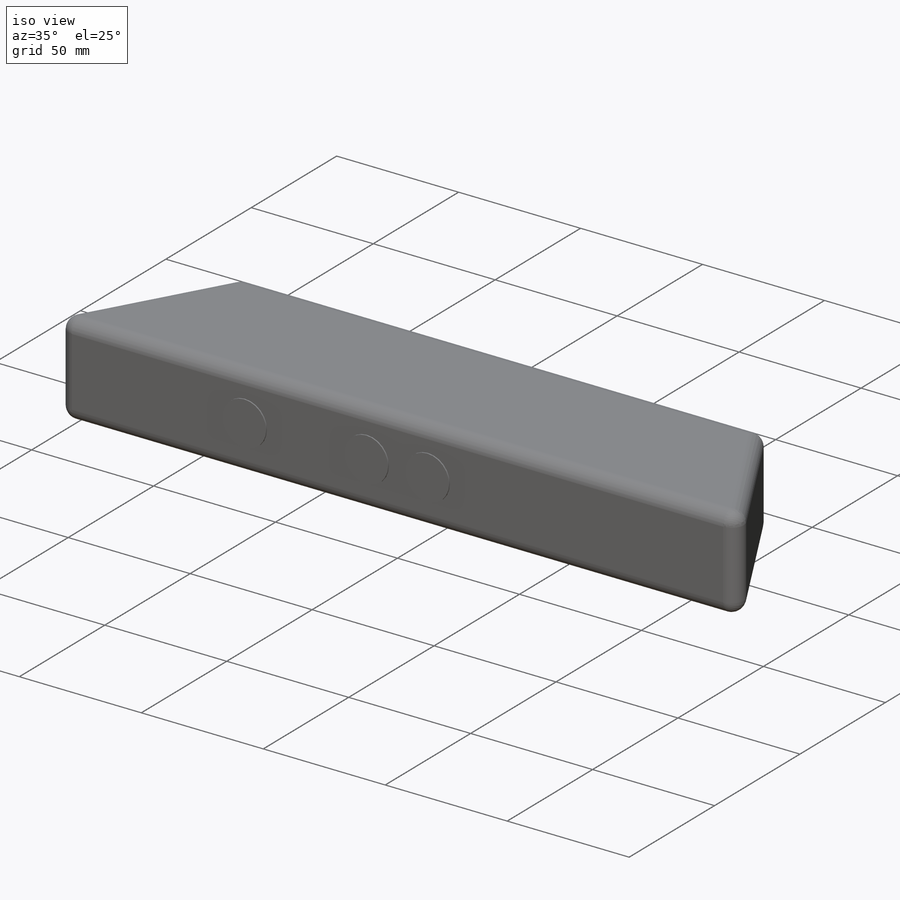
[diagram: iso view]
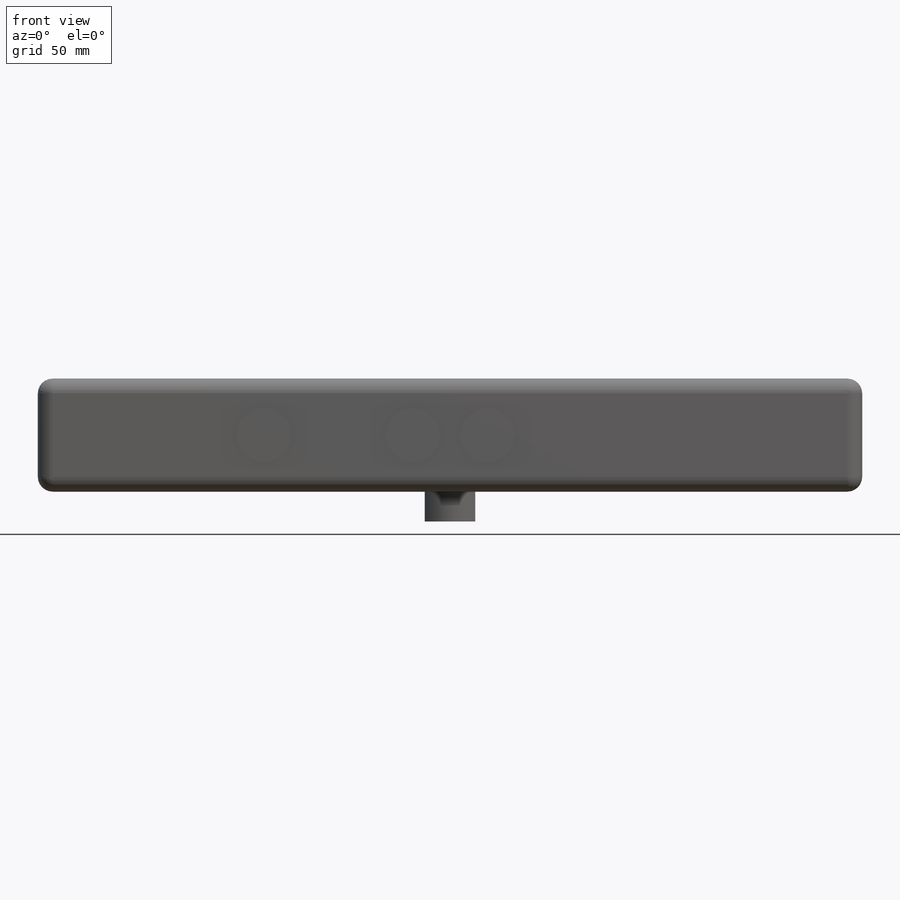
[diagram: front view]
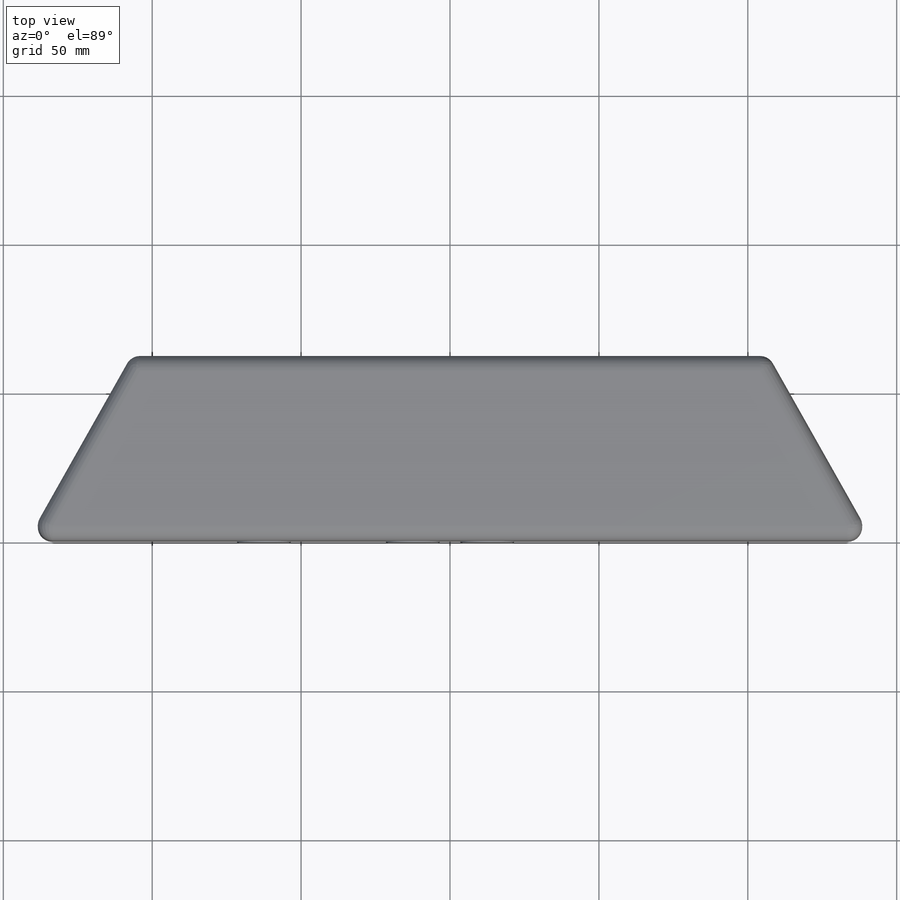
[diagram: top view]
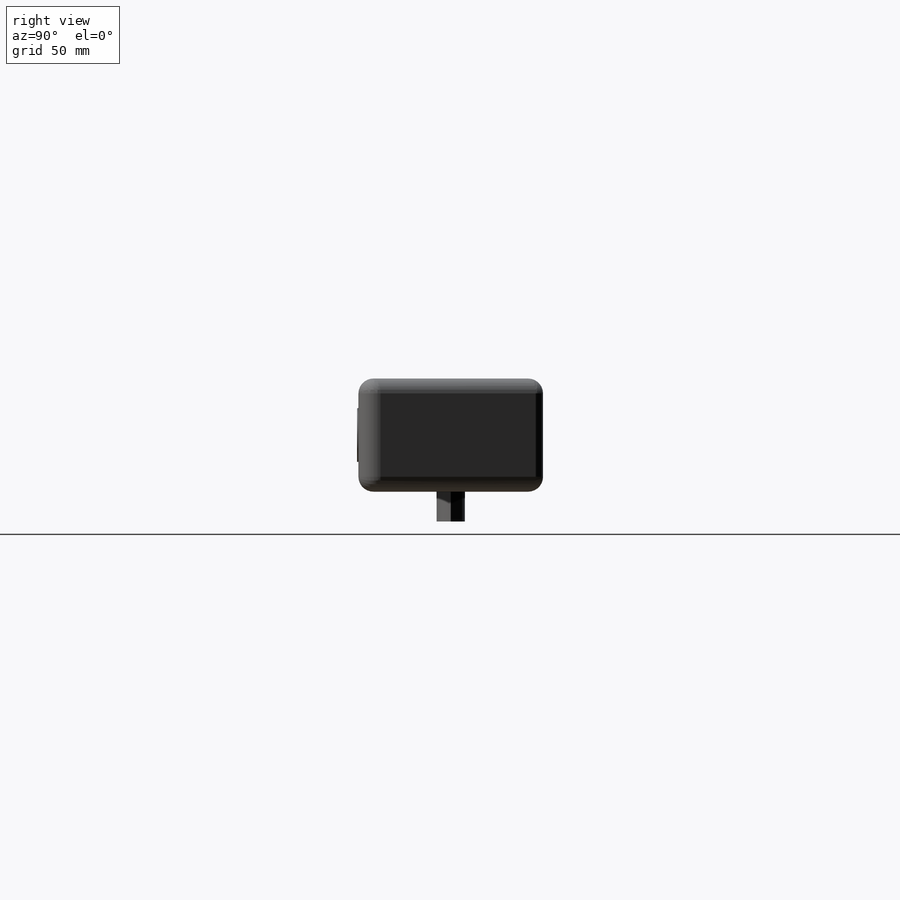
[diagram: right view]
SOLIDWORKS PART (.sldprt)
format: sldprt  version: not decoded by parser v0  size: 287,744 bytes
history: native  units: mm
features: sketch x6, extrude x3, cut_extrude x2, material x1, fillet x1 (+11 scaffold rows collapsed)
feature tree (24):
  scaffold x11  (default folders/planes/origin — collapsed)
  material  "ABS"
  sketch  "Sketch1"  dims[D1=62.0mm D2=284.0mm D3=214.0mm]
  extrude  "Boss-Extrude1"  Depth=38mm
  sketch  "Sketch2"  dims[D1=4.75mm D2=17.0mm]
  extrude  "Boss-Extrude2"  Depth=10mm
  fillet  "Fillet1"  Radius=5mm
  sketch  "Sketch3"  dims[D1=18.0mm D2=25.0mm D3=50.0mm]
  cut_extrude  "Cut-Extrude1"  Depth=5mm
  sketch  "Sketch5"
  extrude  "Boss-Extrude3"  Depth=1mm
  sketch  "Sketch6"  dims[D3=6.0mm D1=17.5mm D2=97.0mm]
  cut_extrude  "Cut-Extrude2"  Depth=2.5mm
  sketch  "Sketch7"
decode coverage: 10 of 12 modeling features carry decoded parameters
note: suppression state not decoded; provenance and decode notes live in map.json
